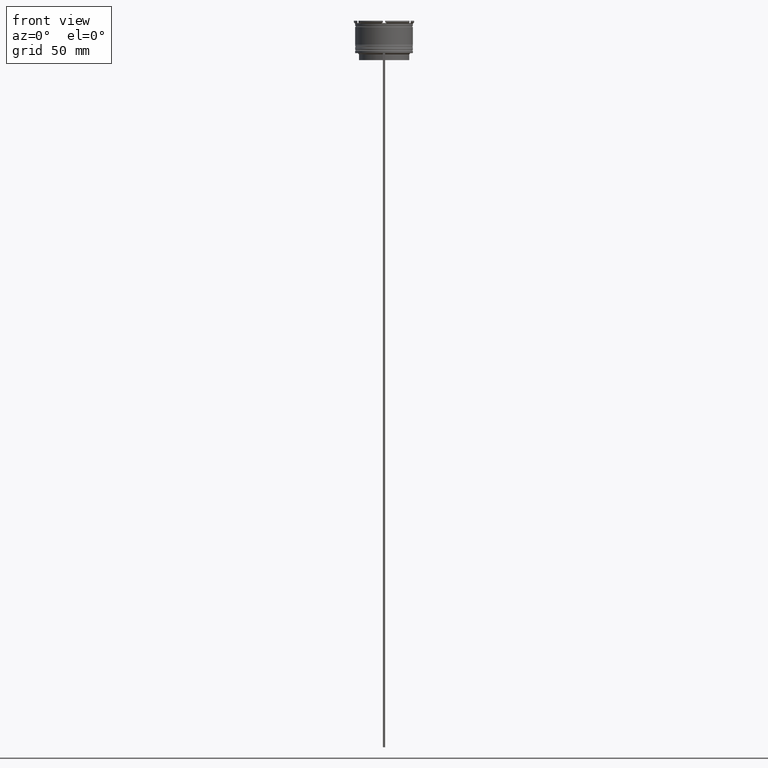
[diagram: clean part render]
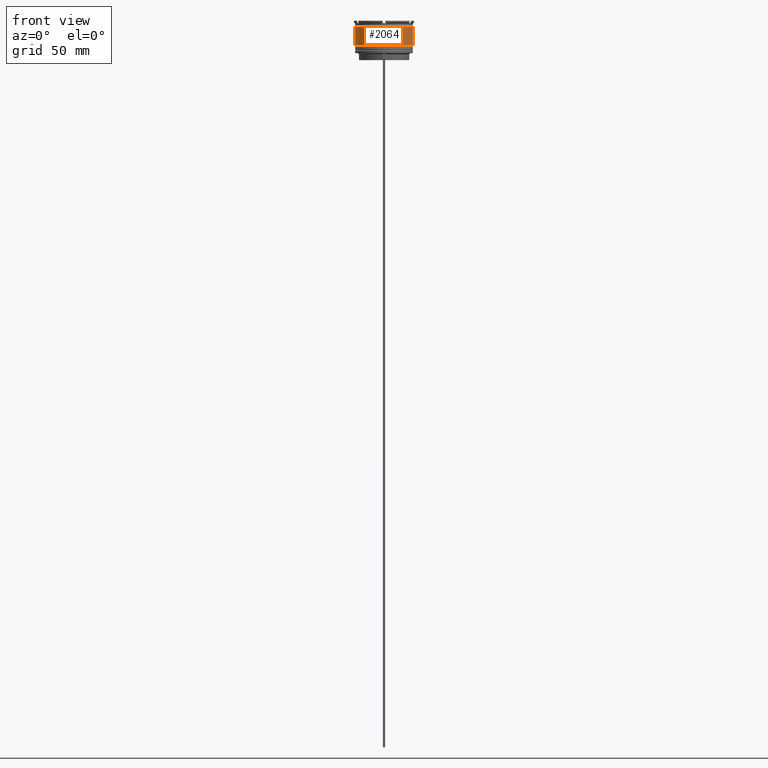
[diagram: same view with one face highlighted and labeled with its STEP entity id]
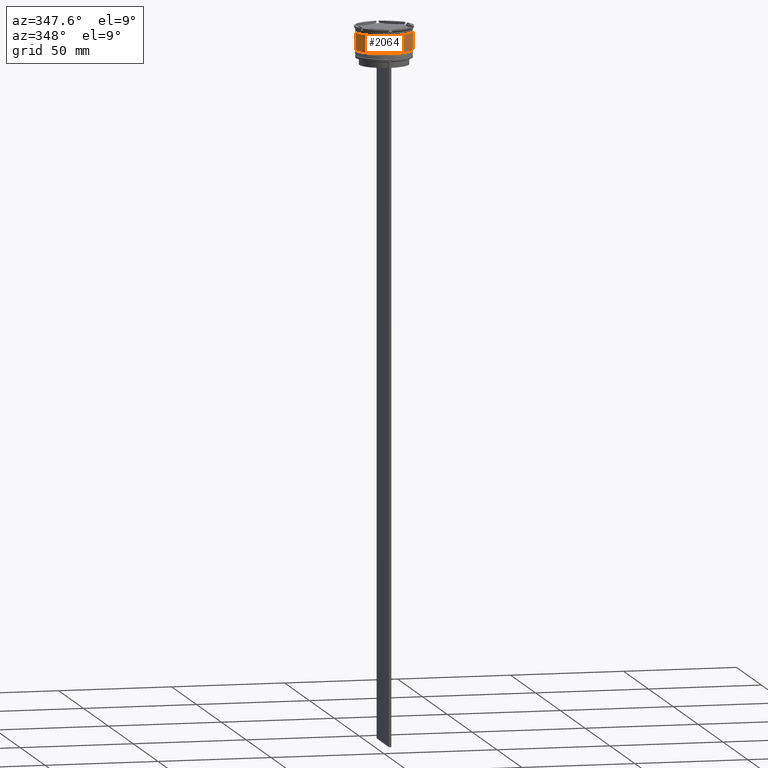
[diagram: same view with one face highlighted and labeled with its STEP entity id]
A machine part, front view. The second image highlights one B-rep face of the part: STEP entity #2064.
A second angle (auxiliary view) of the same face is appended — the face is thin or edge-on in the first view.
In plain terms, the highlighted cylindrical surface (edge-blend (fillet) strip) has radius 12.5 mm, axis along (-0, -0, 1).
Its self-contained STEP definition (entity closure, byte-faithful):
#138 = VERTEX_POINT ( 'NONE', #2321 ) ;
#343 = LINE ( 'NONE', #1232, #901 ) ;
#536 = LINE ( 'NONE', #1421, #860 ) ;
#563 = FACE_OUTER_BOUND ( 'NONE', #2529, .T. ) ;
#648 = DIRECTION ( 'NONE',  ( 1.000000000000000000, 0.000000000000000000, 0.000000000000000000 ) ) ;
#833 = CARTESIAN_POINT ( 'NONE',  ( 0.000000000000000000, 0.000000000000000000, -2.699999999999999289 ) ) ;
#839 = VERTEX_POINT ( 'NONE', #1621 ) ;
#843 = CARTESIAN_POINT ( 'NONE',  ( 0.000000000000000000, 0.000000000000000000, 0.000000000000000000 ) ) ;
#860 = VECTOR ( 'NONE', #941, 1000.000000000000000 ) ;
#901 = VECTOR ( 'NONE', #2400, 1000.000000000000000 ) ;
#941 = DIRECTION ( 'NONE',  ( -0.000000000000000000, -0.000000000000000000, 1.000000000000000000 ) ) ;
#1102 = DIRECTION ( 'NONE',  ( 1.000000000000000000, 0.000000000000000000, 0.000000000000000000 ) ) ;
#1108 = ORIENTED_EDGE ( 'NONE', *, *, #2236, .T. ) ;
#1231 = AXIS2_PLACEMENT_3D ( 'NONE', #843, #1705, #2780 ) ;
#1232 = CARTESIAN_POINT ( 'NONE',  ( 12.50000000000000000, 0.000000000000000000, 0.000000000000000000 ) ) ;
#1327 = CARTESIAN_POINT ( 'NONE',  ( 12.50000000000000178, 0.000000000000000000, -10.50000000000000178 ) ) ;
#1349 = VERTEX_POINT ( 'NONE', #1327 ) ;
#1421 = CARTESIAN_POINT ( 'NONE',  ( -12.50000000000000000, 1.530808498934191521E-15, 0.000000000000000000 ) ) ;
#1522 = CARTESIAN_POINT ( 'NONE',  ( -12.50000000000000355, 1.530808498934191916E-15, -10.50000000000000178 ) ) ;
#1553 = AXIS2_PLACEMENT_3D ( 'NONE', #833, #2608, #648 ) ;
#1621 = CARTESIAN_POINT ( 'NONE',  ( -12.49999999999999822, 1.530808498934191324E-15, -2.699999999999999289 ) ) ;
#1643 = CIRCLE ( 'NONE', #1553, 12.49999999999999822 ) ;
#1705 = DIRECTION ( 'NONE',  ( -0.000000000000000000, -0.000000000000000000, 1.000000000000000000 ) ) ;
#1792 = CARTESIAN_POINT ( 'NONE',  ( 0.000000000000000000, 0.000000000000000000, -10.50000000000000178 ) ) ;
#1837 = ORIENTED_EDGE ( 'NONE', *, *, #1859, .F. ) ;
#1859 = EDGE_CURVE ( 'NONE', #839, #138, #1643, .T. ) ;
#1904 = EDGE_CURVE ( 'NONE', #2238, #839, #536, .T. ) ;
#1948 = ORIENTED_EDGE ( 'NONE', *, *, #1904, .F. ) ;
#2064 = ADVANCED_FACE ( 'NONE', ( #563 ), #2826, .T. ) ;
#2161 = EDGE_CURVE ( 'NONE', #1349, #138, #343, .T. ) ;
#2170 = ORIENTED_EDGE ( 'NONE', *, *, #2161, .T. ) ;
#2236 = EDGE_CURVE ( 'NONE', #2238, #1349, #2487, .T. ) ;
#2238 = VERTEX_POINT ( 'NONE', #1522 ) ;
#2321 = CARTESIAN_POINT ( 'NONE',  ( 12.49999999999999822, 0.000000000000000000, -2.699999999999999289 ) ) ;
#2400 = DIRECTION ( 'NONE',  ( -0.000000000000000000, -0.000000000000000000, 1.000000000000000000 ) ) ;
#2487 = CIRCLE ( 'NONE', #2864, 12.50000000000000178 ) ;
#2529 = EDGE_LOOP ( 'NONE', ( #1948, #1108, #2170, #1837 ) ) ;
#2608 = DIRECTION ( 'NONE',  ( -0.000000000000000000, -0.000000000000000000, 1.000000000000000000 ) ) ;
#2651 = DIRECTION ( 'NONE',  ( -0.000000000000000000, -0.000000000000000000, 1.000000000000000000 ) ) ;
#2780 = DIRECTION ( 'NONE',  ( 1.000000000000000000, 0.000000000000000000, 0.000000000000000000 ) ) ;
#2826 = CYLINDRICAL_SURFACE ( 'NONE', #1231, 12.50000000000000000 ) ;
#2864 = AXIS2_PLACEMENT_3D ( 'NONE', #1792, #2651, #1102 ) ;